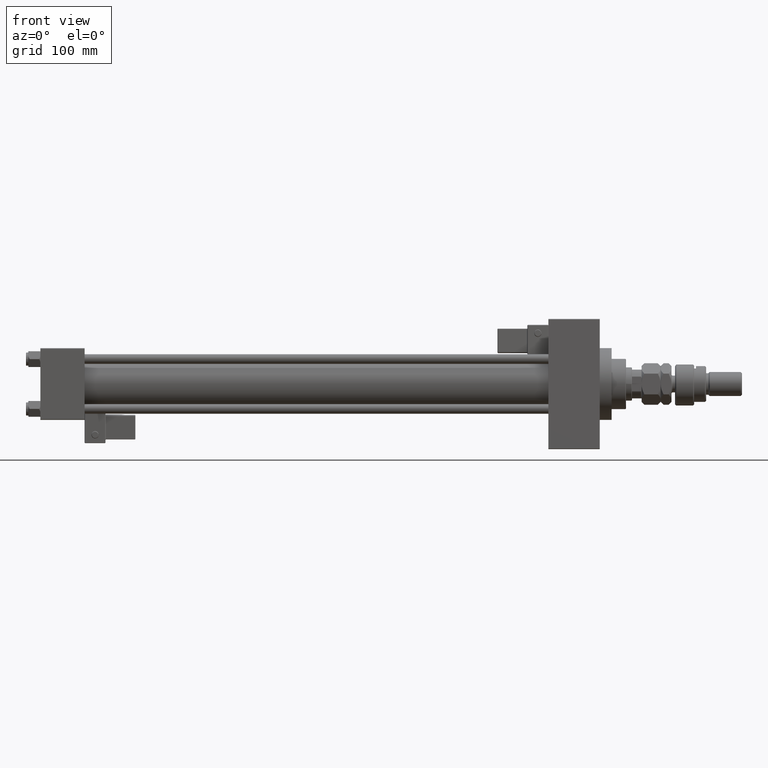
[diagram: clean part render]
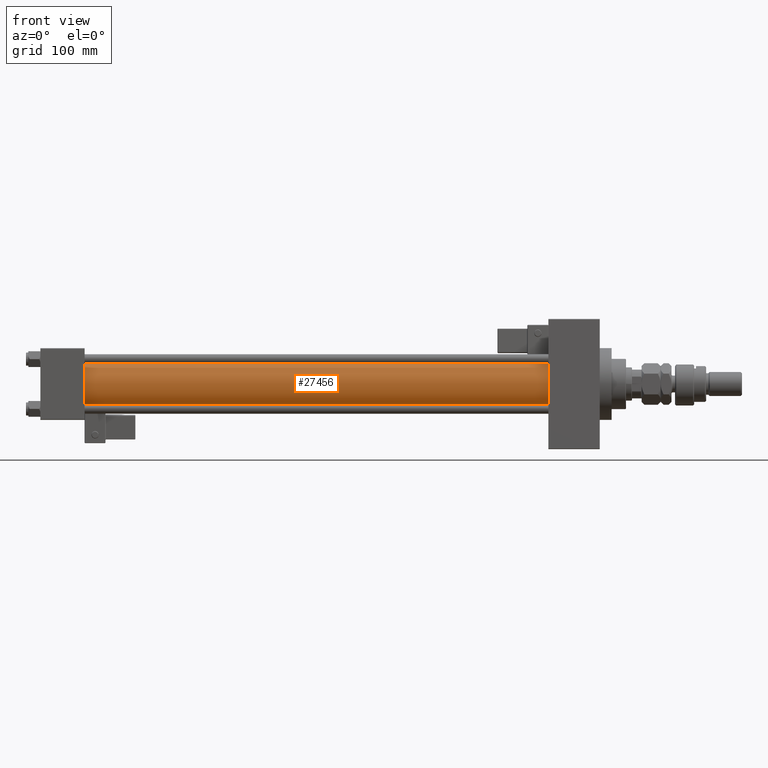
[diagram: same view with one face highlighted and labeled with its STEP entity id]
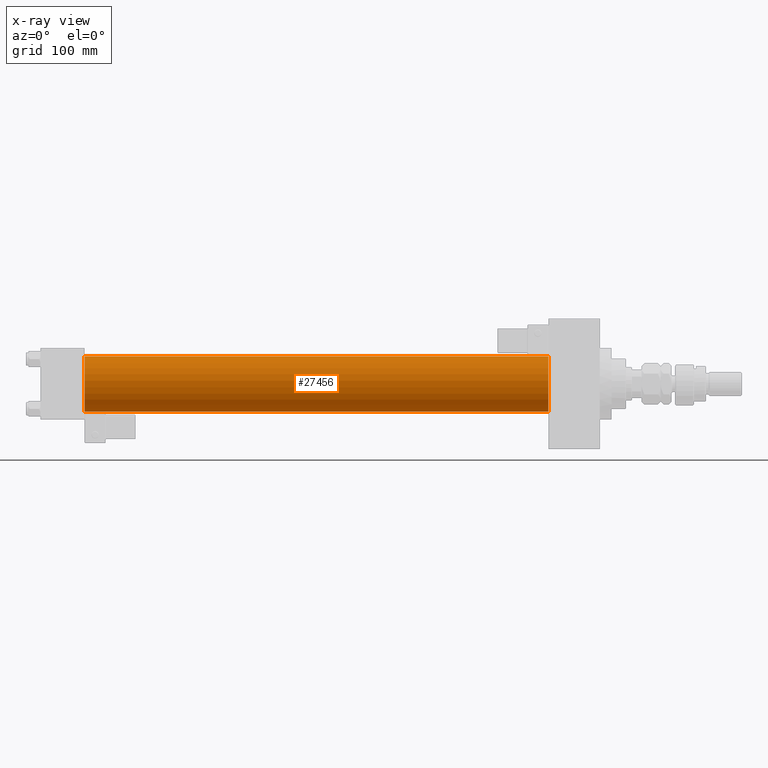
[diagram: x-ray of the same camera — body ghosted, the highlighted face saturated]
A machine part, front view. The second image highlights one B-rep face of the part: STEP entity #27456.
The next image is the same camera in x-ray: the body ghosted, the highlighted face saturated — about 0% of this face is hidden behind the body in this view.
In plain terms, the highlighted cylindrical surface (edge-blend (fillet) strip) has radius 23 mm, axis along (-1, -0, -0).
Its self-contained STEP definition (entity closure, byte-faithful):
#2566 = DIRECTION ( 'NONE',  ( 0.000000000000000000, 0.000000000000000000, 1.000000000000000000 ) ) ;
#5092 = EDGE_CURVE ( 'NONE', #5643, #35837, #41647, .T. ) ;
#5643 = VERTEX_POINT ( 'NONE', #33679 ) ;
#5698 = LINE ( 'NONE', #26179, #31874 ) ;
#9382 = AXIS2_PLACEMENT_3D ( 'NONE', #23303, #11064, #2566 ) ;
#9869 = VERTEX_POINT ( 'NONE', #35624 ) ;
#9977 = DIRECTION ( 'NONE',  ( 0.000000000000000000, 0.000000000000000000, 1.000000000000000000 ) ) ;
#10512 = DIRECTION ( 'NONE',  ( -1.000000000000000000, -0.000000000000000000, -0.000000000000000000 ) ) ;
#11064 = DIRECTION ( 'NONE',  ( 1.000000000000000000, -0.000000000000000000, 0.000000000000000000 ) ) ;
#11602 = CIRCLE ( 'NONE', #37914, 23.00000000000000000 ) ;
#11917 = EDGE_CURVE ( 'NONE', #9869, #39321, #11602, .T. ) ;
#13447 = EDGE_CURVE ( 'NONE', #9869, #5643, #47690, .T. ) ;
#14468 = DIRECTION ( 'NONE',  ( -1.000000000000000000, -0.000000000000000000, -0.000000000000000000 ) ) ;
#15494 = AXIS2_PLACEMENT_3D ( 'NONE', #42956, #10512, #9977 ) ;
#17340 = EDGE_LOOP ( 'NONE', ( #48582, #45985, #20810, #46644 ) ) ;
#20482 = DIRECTION ( 'NONE',  ( 1.000000000000000000, 0.000000000000000000, 0.000000000000000000 ) ) ;
#20810 = ORIENTED_EDGE ( 'NONE', *, *, #13447, .T. ) ;
#23303 = CARTESIAN_POINT ( 'NONE',  ( 36.99999999999997868, -2.602085213965210642E-15, 0.000000000000000000 ) ) ;
#26179 = CARTESIAN_POINT ( 'NONE',  ( 425.0000000000000000, 2.146024240737012665E-16, -23.00000000000000000 ) ) ;
#27456 = ADVANCED_FACE ( 'NONE', ( #38944 ), #46934, .T. ) ;
#30009 = CARTESIAN_POINT ( 'NONE',  ( 36.99999999999997868, 2.146024240737012665E-16, -23.00000000000000000 ) ) ;
#31874 = VECTOR ( 'NONE', #42667, 1000.000000000000000 ) ;
#33679 = CARTESIAN_POINT ( 'NONE',  ( 36.99999999999997868, -2.602085213965210642E-15, 23.00000000000000000 ) ) ;
#35624 = CARTESIAN_POINT ( 'NONE',  ( 425.0000000000000000, -2.602085213965210642E-15, 23.00000000000000000 ) ) ;
#35837 = VERTEX_POINT ( 'NONE', #30009 ) ;
#37914 = AXIS2_PLACEMENT_3D ( 'NONE', #44405, #20482, #48136 ) ;
#38944 = FACE_OUTER_BOUND ( 'NONE', #17340, .T. ) ;
#39321 = VERTEX_POINT ( 'NONE', #52049 ) ;
#41647 = CIRCLE ( 'NONE', #9382, 23.00000000000000000 ) ;
#42667 = DIRECTION ( 'NONE',  ( -1.000000000000000000, -0.000000000000000000, -0.000000000000000000 ) ) ;
#42956 = CARTESIAN_POINT ( 'NONE',  ( 425.0000000000000000, -2.602085213965210642E-15, 0.000000000000000000 ) ) ;
#43697 = CARTESIAN_POINT ( 'NONE',  ( 425.0000000000000000, -2.602085213965210642E-15, 23.00000000000000000 ) ) ;
#43906 = EDGE_CURVE ( 'NONE', #39321, #35837, #5698, .T. ) ;
#44405 = CARTESIAN_POINT ( 'NONE',  ( 425.0000000000000000, -2.602085213965210642E-15, 0.000000000000000000 ) ) ;
#45622 = VECTOR ( 'NONE', #14468, 1000.000000000000000 ) ;
#45985 = ORIENTED_EDGE ( 'NONE', *, *, #11917, .F. ) ;
#46644 = ORIENTED_EDGE ( 'NONE', *, *, #5092, .T. ) ;
#46934 = CYLINDRICAL_SURFACE ( 'NONE', #15494, 23.00000000000000000 ) ;
#47690 = LINE ( 'NONE', #43697, #45622 ) ;
#48136 = DIRECTION ( 'NONE',  ( 0.000000000000000000, 0.000000000000000000, -1.000000000000000000 ) ) ;
#48582 = ORIENTED_EDGE ( 'NONE', *, *, #43906, .F. ) ;
#52049 = CARTESIAN_POINT ( 'NONE',  ( 425.0000000000000000, 2.146024240737012665E-16, -23.00000000000000000 ) ) ;